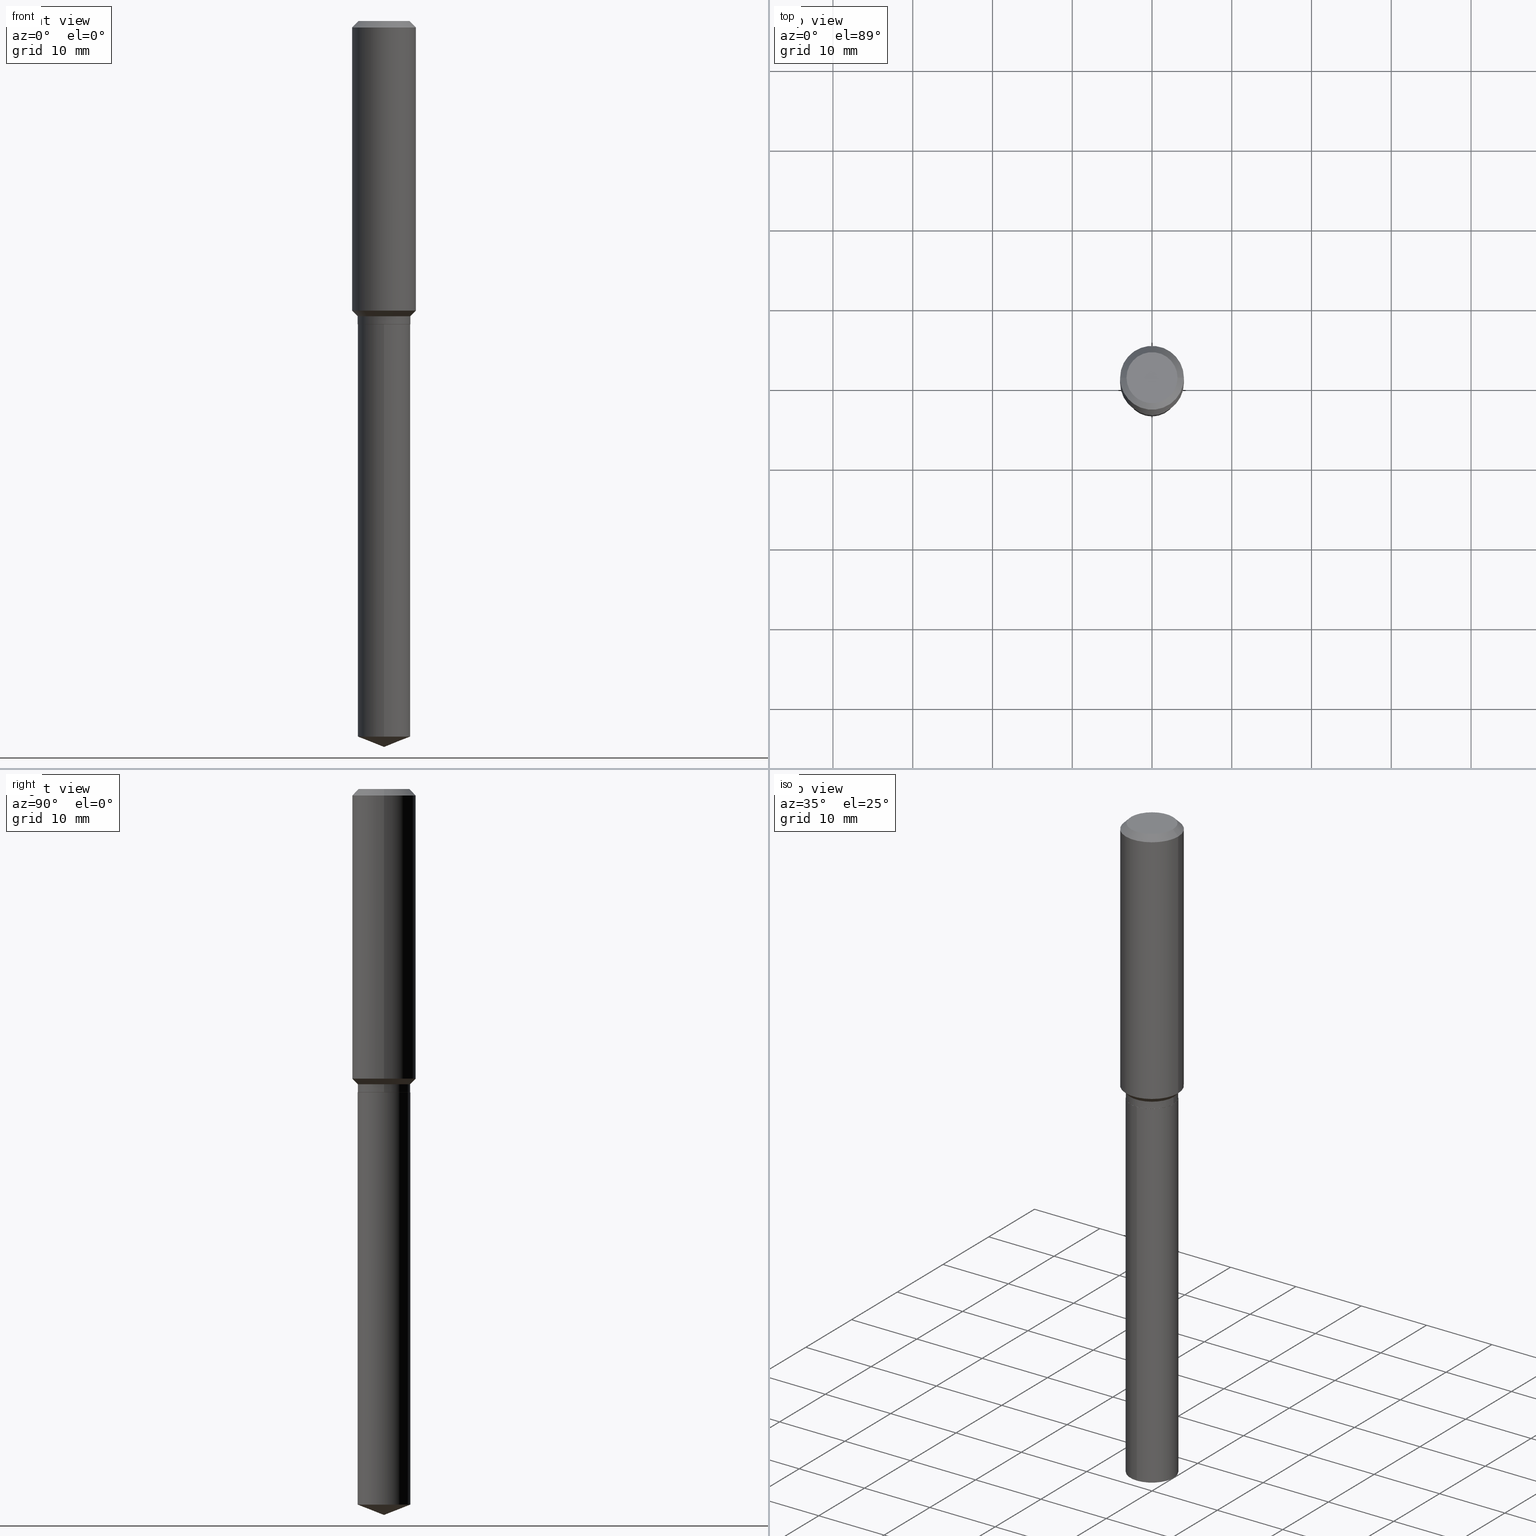
[diagram: canonical four-view strip — front | top / right | iso, engineering-drawing reading convention]
A machine part, canonical four-view strip (front | top / right | iso — engineering-drawing reading convention). The complete STEP part file that produces these views, byte-faithful:
ISO-10303-21;
HEADER;
FILE_DESCRIPTION (( 'STEP AP203' ),
    '1' );
FILE_NAME ('66539.STEP',
    '2024-04-25T00:32:52',
    ( '' ),
    ( '' ),
    'SwSTEP 2.0',
    'SolidWorks 2023',
    '' );
FILE_SCHEMA (( 'CONFIG_CONTROL_DESIGN' ));
ENDSEC;

DATA;
#1 = PERSON_AND_ORGANIZATION_ROLE ( 'creator' ) ;
#2 = CARTESIAN_POINT ( 'NONE',  ( 8.636895204888756540E-29, -1.233144730051183123E-14, -3.531831029217620266 ) ) ;
#3 = EDGE_LOOP ( 'NONE', ( #119, #77 ) ) ;
#4 = DIRECTION ( 'NONE',  ( -2.445468806185136597E-29, 3.491481338843145583E-15, 1.000000000000000000 ) ) ;
#5 = ORIENTED_EDGE ( 'NONE', *, *, #387, .F. ) ;
#6 = ADVANCED_FACE ( 'NONE', ( #322 ), #208, .T. ) ;
#7 = DIRECTION ( 'NONE',  ( -6.982962677686266711E-15, -1.000000000000000000, 4.206078512185163024E-15 ) ) ;
#8 = VERTEX_POINT ( 'NONE', #132 ) ;
#9 = VECTOR ( 'NONE', #255, 39.37007874015748143 ) ;
#10 = CARTESIAN_POINT ( 'NONE',  ( 8.636895204888756540E-29, -1.233144730051183123E-14, -3.531831029217620266 ) ) ;
#11 = DIRECTION ( 'NONE',  ( 1.000000000000000000, -6.982962677686268288E-15, 0.000000000000000000 ) ) ;
#12 = FACE_OUTER_BOUND ( 'NONE', #87, .T. ) ;
#13 = PRODUCT ( '66539', '66539', '', ( #16 ) ) ;
#14 = DIRECTION ( 'NONE',  ( -2.445468806185136597E-29, 3.491481338843145583E-15, 1.000000000000000000 ) ) ;
#15 = ADVANCED_FACE ( 'NONE', ( #438 ), #50, .T. ) ;
#16 = MECHANICAL_CONTEXT ( 'NONE', #233, 'mechanical' ) ;
#17 = LINE ( 'NONE', #55, #9 ) ;
#18 = DIRECTION ( 'NONE',  ( -1.000000000000000000, 6.982962677686265922E-15, -4.876176775795935793E-29 ) ) ;
#19 = DIMENSIONAL_EXPONENTS ( 1.000000000000000000, 0.000000000000000000, 0.000000000000000000, 0.000000000000000000, 0.000000000000000000, 0.000000000000000000, 0.000000000000000000 ) ;
#20 = ORIENTED_EDGE ( 'NONE', *, *, #125, .T. ) ;
#21 = PLANE ( 'NONE',  #45 ) ;
#22 = CARTESIAN_POINT ( 'NONE',  ( 0.000000000000000000, 0.000000000000000000, 0.000000000000000000 ) ) ;
#23 = AXIS2_PLACEMENT_3D ( 'NONE', #479, #193, #295 ) ;
#24 = ORIENTED_EDGE ( 'NONE', *, *, #299, .F. ) ;
#25 = DIRECTION ( 'NONE',  ( -2.445468806185136597E-29, 3.491481338843145583E-15, 1.000000000000000000 ) ) ;
#26 = APPROVAL_ROLE ( '' ) ;
#27 = COORDINATED_UNIVERSAL_TIME_OFFSET ( 5, 0, .BEHIND. ) ;
#28 = DIRECTION ( 'NONE',  ( -2.445468806185136597E-29, 3.491481338843145583E-15, 1.000000000000000000 ) ) ;
#29 = ORIENTED_EDGE ( 'NONE', *, *, #210, .T. ) ;
#30 = FACE_OUTER_BOUND ( 'NONE', #3, .T. ) ;
#31 = ORIENTED_EDGE ( 'NONE', *, *, #198, .T. ) ;
#32 = EDGE_CURVE ( 'NONE', #154, #94, #17, .T. ) ;
#33 = APPROVAL_DATE_TIME ( #186, #285 ) ;
#34 = VECTOR ( 'NONE', #280, 39.37007874015748143 ) ;
#35 = DIRECTION ( 'NONE',  ( 2.445468806185136597E-29, -3.491481338843145583E-15, -1.000000000000000000 ) ) ;
#36 = ORIENTED_EDGE ( 'NONE', *, *, #358, .F. ) ;
#37 = AXIS2_PLACEMENT_3D ( 'NONE', #432, #459, #166 ) ;
#38 = DIRECTION ( 'NONE',  ( -2.445425864037539356E-29, 3.491542834442619101E-15, 1.000000000000000000 ) ) ;
#39 = ORIENTED_EDGE ( 'NONE', *, *, #141, .T. ) ;
#40 = DIRECTION ( 'NONE',  ( -2.445425864037539637E-29, 3.491542834442619495E-15, 1.000000000000000000 ) ) ;
#41 = ORIENTED_EDGE ( 'NONE', *, *, #198, .F. ) ;
#42 = FACE_OUTER_BOUND ( 'NONE', #66, .T. ) ;
#43 = DIRECTION ( 'NONE',  ( -6.982962677686266711E-15, -1.000000000000000000, 4.206078512185163024E-15 ) ) ;
#44 = AXIS2_PLACEMENT_3D ( 'NONE', #332, #248, #43 ) ;
#45 = AXIS2_PLACEMENT_3D ( 'NONE', #437, #174, #338 ) ;
#46 = LOCAL_TIME ( 20, 32, 52.00000000000000000, #65 ) ;
#47 = DIRECTION ( 'NONE',  ( 1.000000000000000000, -6.982962677686265922E-15, 4.876281427513067258E-29 ) ) ;
#48 = ADVANCED_FACE ( 'NONE', ( #53 ), #173, .T. ) ;
#49 = DIRECTION ( 'NONE',  ( -2.445425864037539637E-29, 3.491542834442619495E-15, 1.000000000000000000 ) ) ;
#50 = CONICAL_SURFACE ( 'NONE', #422, 0.1293999999999999873, 0.7853981633972775267 ) ;
#51 = VECTOR ( 'NONE', #439, 39.37007874015748143 ) ;
#52 = AXIS2_PLACEMENT_3D ( 'NONE', #443, #294, #58 ) ;
#53 = FACE_OUTER_BOUND ( 'NONE', #486, .T. ) ;
#54 = APPLICATION_PROTOCOL_DEFINITION ( 'international standard', 'config_control_design', 1994, #233 ) ;
#55 = CARTESIAN_POINT ( 'NONE',  ( 0.1575000000000000011, -1.190510096822576026E-15, -0.03150000000000019451 ) ) ;
#56 = APPROVAL_DATE_TIME ( #290, #377 ) ;
#57 = CARTESIAN_POINT ( 'NONE',  ( -8.751458369089940116E-28, 1.249522103628457051E-13, 35.78707874015748303 ) ) ;
#58 = DIRECTION ( 'NONE',  ( 1.000000000000000000, -6.982962677686268288E-15, 0.000000000000000000 ) ) ;
#59 = CYLINDRICAL_SURFACE ( 'NONE', #60, 0.1575000000000000844 ) ;
#60 = AXIS2_PLACEMENT_3D ( 'NONE', #22, #175, #217 ) ;
#61 = VECTOR ( 'NONE', #130, 39.37007874015748143 ) ;
#62 = DIRECTION ( 'NONE',  ( -6.982962677686266711E-15, -1.000000000000000000, 4.206078512185163024E-15 ) ) ;
#63 = ORIENTED_EDGE ( 'NONE', *, *, #344, .F. ) ;
#64 = ADVANCED_FACE ( 'NONE', ( #435 ), #471, .T. ) ;
#65 = COORDINATED_UNIVERSAL_TIME_OFFSET ( 5, 0, .BEHIND. ) ;
#66 = EDGE_LOOP ( 'NONE', ( #311, #216, #41, #112 ) ) ;
#67 = ADVANCED_FACE ( 'NONE', ( #138 ), #143, .T. ) ;
#68 = AXIS2_PLACEMENT_3D ( 'NONE', #57, #404, #391 ) ;
#69 = CONICAL_SURFACE ( 'NONE', #375, 0.1575000000000000011, 0.7853981633974449483 ) ;
#70 = DIRECTION ( 'NONE',  ( 1.000000000000000000, -6.982962677686265922E-15, 4.876176775795935793E-29 ) ) ;
#71 = APPROVAL_ROLE ( '' ) ;
#72 = EDGE_CURVE ( 'NONE', #269, #236, #465, .T. ) ;
#73 = CARTESIAN_POINT ( 'NONE',  ( 8.762090515050494278E-29, -1.251001393177779982E-14, -3.583000000000000185 ) ) ;
#74 = EDGE_LOOP ( 'NONE', ( #306, #20, #36, #99 ) ) ;
#75 = SECURITY_CLASSIFICATION_LEVEL ( 'unclassified' ) ;
#76 = CARTESIAN_POINT ( 'NONE',  ( 3.495553111561034173E-29, -4.990723425742393195E-15, -1.429400000000000004 ) ) ;
#77 = ORIENTED_EDGE ( 'NONE', *, *, #416, .F. ) ;
#78 = DIRECTION ( 'NONE',  ( -2.445425864037539637E-29, 3.491542834442619495E-15, 1.000000000000000000 ) ) ;
#79 = ORIENTED_EDGE ( 'NONE', *, *, #253, .T. ) ;
#80 = AXIS2_PLACEMENT_3D ( 'NONE', #179, #28, #485 ) ;
#81 = CARTESIAN_POINT ( 'NONE',  ( 0.1293999999999999873, -6.128248045937486730E-15, -1.496400000000000396 ) ) ;
#82 = ORIENTED_EDGE ( 'NONE', *, *, #125, .F. ) ;
#83 = ADVANCED_FACE ( 'NONE', ( #211 ), #282, .T. ) ;
#84 = CARTESIAN_POINT ( 'NONE',  ( 3.659399521575439863E-29, -5.224652675444884140E-15, -1.496400000000000396 ) ) ;
#85 = ORIENTED_EDGE ( 'NONE', *, *, #172, .F. ) ;
#86 = DIRECTION ( 'NONE',  ( -6.982962677686266711E-15, -1.000000000000000000, 4.206078512185163024E-15 ) ) ;
#87 = EDGE_LOOP ( 'NONE', ( #178, #39, #360, #63 ) ) ;
#88 = CARTESIAN_POINT ( 'NONE',  ( -0.1298999999999999877, -4.232002608982592346E-15, -1.457000000000000073 ) ) ;
#89 = DIRECTION ( 'NONE',  ( -2.445425864037539637E-29, 3.491542834442619495E-15, 1.000000000000000000 ) ) ;
#90 = COORDINATED_UNIVERSAL_TIME_OFFSET ( 5, 0, .BEHIND. ) ;
#91 = EDGE_CURVE ( 'NONE', #158, #200, #228, .T. ) ;
#92 = AXIS2_PLACEMENT_3D ( 'NONE', #10, #207, #7 ) ;
#93 = CARTESIAN_POINT ( 'NONE',  ( 3.563048050611744147E-29, -5.087088310694462559E-15, -1.457000000000000073 ) ) ;
#94 = VERTEX_POINT ( 'NONE', #297 ) ;
#95 =( NAMED_UNIT ( * ) SI_UNIT ( $, .STERADIAN. ) SOLID_ANGLE_UNIT ( ) );
#96 = VERTEX_POINT ( 'NONE', #450 ) ;
#97 = CARTESIAN_POINT ( 'NONE',  ( 0.1260000000000000009, -1.027466422270894443E-15, 3.860086710919128072E-18 ) ) ;
#98 = LINE ( 'NONE', #328, #272 ) ;
#99 = ORIENTED_EDGE ( 'NONE', *, *, #340, .F. ) ;
#100 = CIRCLE ( 'NONE', #397, 0.1298999999999999877 ) ;
#101 = PERSON_AND_ORGANIZATION_ROLE ( 'classification_officer' ) ;
#102 = PERSON_AND_ORGANIZATION ( #314, #412 ) ;
#103 = PLANE ( 'NONE',  #201 ) ;
#104 = EDGE_LOOP ( 'NONE', ( #425, #257 ) ) ;
#105 = EDGE_CURVE ( 'NONE', #158, #114, #113, .T. ) ;
#106 = AXIS2_PLACEMENT_3D ( 'NONE', #289, #398, #205 ) ;
#107 = DATE_AND_TIME ( #445, #46 ) ;
#108 = CIRCLE ( 'NONE', #251, 0.1293999999999999873 ) ;
#109 = DIRECTION ( 'NONE',  ( -6.982962677686266711E-15, -1.000000000000000000, 4.206078512185163024E-15 ) ) ;
#110 = ORIENTED_EDGE ( 'NONE', *, *, #227, .F. ) ;
#111 = CARTESIAN_POINT ( 'NONE',  ( 8.761960870846503037E-29, -1.251019797580790401E-14, -3.583000000000000185 ) ) ;
#112 = ORIENTED_EDGE ( 'NONE', *, *, #292, .F. ) ;
#113 = LINE ( 'NONE', #73, #242 ) ;
#114 = VERTEX_POINT ( 'NONE', #270 ) ;
#115 = ADVANCED_BREP_SHAPE_REPRESENTATION ( '66539', ( #363, #370, #291 ), #223 ) ;
#116 = VECTOR ( 'NONE', #379, 39.37007874015748143 ) ;
#117 = VECTOR ( 'NONE', #235, 39.37007874015748143 ) ;
#118 = CARTESIAN_POINT ( 'NONE',  ( 0.000000000000000000, 0.000000000000000000, 0.000000000000000000 ) ) ;
#119 = ORIENTED_EDGE ( 'NONE', *, *, #331, .F. ) ;
#120 = EDGE_CURVE ( 'NONE', #200, #114, #136, .T. ) ;
#121 = DIRECTION ( 'NONE',  ( -2.445468806185136597E-29, 3.491481338843145583E-15, 1.000000000000000000 ) ) ;
#122 = VERTEX_POINT ( 'NONE', #405 ) ;
#123 = CARTESIAN_POINT ( 'NONE',  ( -9.439721640706201686E-47, 1.347742071746726764E-32, 3.860086710912459732E-18 ) ) ;
#124 = CARTESIAN_POINT ( 'NONE',  ( -0.1298999999999999877, -4.164093296942092308E-15, -1.457000000000000073 ) ) ;
#125 = EDGE_CURVE ( 'NONE', #114, #382, #258, .T. ) ;
#126 = DIRECTION ( 'NONE',  ( 1.000000000000000000, -6.982962677686265133E-15, 0.000000000000000000 ) ) ;
#127 = CIRCLE ( 'NONE', #260, 0.1575000000000000011 ) ;
#128 = AXIS2_PLACEMENT_3D ( 'NONE', #157, #315, #206 ) ;
#129 = CC_DESIGN_APPROVAL ( #285, ( #273 ) ) ;
#130 = DIRECTION ( 'NONE',  ( 0.7071067811864267805, -2.468850131080992517E-15, 0.7071067811866682540 ) ) ;
#131 = CARTESIAN_POINT ( 'NONE',  ( -0.1298999999999999877, 9.229950137523700540E-16, -6.389696682241121810E-30 ) ) ;
#132 = CARTESIAN_POINT ( 'NONE',  ( 0.1298999999999999877, -6.129993786606908234E-15, -1.495900000000000230 ) ) ;
#133 = APPLICATION_CONTEXT ( 'configuration controlled 3d designs of mechanical parts and assemblies' ) ;
#134 = CALENDAR_DATE ( 2024, 24, 4 ) ;
#135 = CC_DESIGN_DATE_AND_TIME_ASSIGNMENT ( #146, #453, ( #273 ) ) ;
#136 = CIRCLE ( 'NONE', #342, 0.1298999999999999877 ) ;
#137 = AXIS2_PLACEMENT_3D ( 'NONE', #215, #89, #62 ) ;
#138 = FACE_OUTER_BOUND ( 'NONE', #460, .T. ) ;
#139 = ORIENTED_EDGE ( 'NONE', *, *, #141, .F. ) ;
#140 = CARTESIAN_POINT ( 'NONE',  ( 7.703226739483228723E-31, -1.099816621735597661E-16, -0.03150000000000019451 ) ) ;
#141 = EDGE_CURVE ( 'NONE', #269, #313, #100, .T. ) ;
#142 = DIRECTION ( 'NONE',  ( -1.000000000000000000, 6.982962677686265922E-15, 0.000000000000000000 ) ) ;
#143 = CONICAL_SURFACE ( 'NONE', #449, 0.1298999999999999877, 0.7853981633974513876 ) ;
#144 = AXIS2_PLACEMENT_3D ( 'NONE', #76, #378, #231 ) ;
#145 = LOCAL_TIME ( 20, 32, 52.00000000000000000, #90 ) ;
#146 = DATE_AND_TIME ( #413, #183 ) ;
#147 = DATE_TIME_ROLE ( 'creation_date' ) ;
#148 = CC_DESIGN_PERSON_AND_ORGANIZATION_ASSIGNMENT ( #408, #101, ( #273 ) ) ;
#149 = LINE ( 'NONE', #277, #117 ) ;
#150 = ORIENTED_EDGE ( 'NONE', *, *, #387, .T. ) ;
#151 = PERSON_AND_ORGANIZATION_ROLE ( 'creator' ) ;
#152 = VECTOR ( 'NONE', #237, 39.37007874015748143 ) ;
#153 = FACE_OUTER_BOUND ( 'NONE', #428, .T. ) ;
#154 = VERTEX_POINT ( 'NONE', #97 ) ;
#155 = DIRECTION ( 'NONE',  ( 1.000000000000000000, -6.982962677686268288E-15, 0.000000000000000000 ) ) ;
#156 = EDGE_LOOP ( 'NONE', ( #238, #386, #455, #402 ) ) ;
#157 = CARTESIAN_POINT ( 'NONE',  ( 3.659399521575439863E-29, -5.224652675444884140E-15, -1.496400000000000396 ) ) ;
#158 = VERTEX_POINT ( 'NONE', #454 ) ;
#159 = CLOSED_SHELL ( 'NONE', ( #288, #6, #302, #48, #456 ) ) ;
#160 = AXIS2_PLACEMENT_3D ( 'NONE', #468, #49, #243 ) ;
#161 = CARTESIAN_POINT ( 'NONE',  ( 0.1575000000000001676, -6.090540047477979887E-15, -1.429400000000000004 ) ) ;
#162 = VERTEX_POINT ( 'NONE', #444 ) ;
#163 = ADVANCED_FACE ( 'NONE', ( #30 ), #103, .F. ) ;
#164 = DIRECTION ( 'NONE',  ( -2.445468806185136597E-29, 3.491481338843145583E-15, 1.000000000000000000 ) ) ;
#165 = ORIENTED_EDGE ( 'NONE', *, *, #91, .F. ) ;
#166 = DIRECTION ( 'NONE',  ( 1.000000000000000000, -6.982962677686265922E-15, 4.876281427513067258E-29 ) ) ;
#167 = CARTESIAN_POINT ( 'NONE',  ( 3.659399521575438742E-29, -5.224652675444883351E-15, -1.496400000000000174 ) ) ;
#168 = CIRCLE ( 'NONE', #265, 0.1298999999999999877 ) ;
#169 = LOCAL_TIME ( 20, 32, 52.00000000000000000, #27 ) ;
#170 = LENGTH_MEASURE_WITH_UNIT ( LENGTH_MEASURE( 0.02539999999999999897 ), #434 );
#171 = ORIENTED_EDGE ( 'NONE', *, *, #263, .T. ) ;
#172 = EDGE_CURVE ( 'NONE', #236, #420, #264, .T. ) ;
#173 = CYLINDRICAL_SURFACE ( 'NONE', #44, 0.1298999999999999877 ) ;
#174 = DIRECTION ( 'NONE',  ( 2.445425864037539637E-29, -3.491542834442619101E-15, -1.000000000000000000 ) ) ;
#175 = DIRECTION ( 'NONE',  ( -2.445468806185136597E-29, 3.491481338843145583E-15, 1.000000000000000000 ) ) ;
#176 = CIRCLE ( 'NONE', #218, 0.1575000000000001676 ) ;
#177 = PERSON_AND_ORGANIZATION ( #314, #412 ) ;
#178 = ORIENTED_EDGE ( 'NONE', *, *, #72, .F. ) ;
#179 = CARTESIAN_POINT ( 'NONE',  ( 3.563048050611744147E-29, -5.087088310694462559E-15, -1.457000000000000073 ) ) ;
#180 = APPROVAL_DATE_TIME ( #107, #347 ) ;
#181 = VECTOR ( 'NONE', #381, 39.37007874015748854 ) ;
#182 = VECTOR ( 'NONE', #38, 39.37007874015748143 ) ;
#183 = LOCAL_TIME ( 20, 32, 52.00000000000000000, #221 ) ;
#184 = CALENDAR_DATE ( 2024, 24, 4 ) ;
#185 = EDGE_CURVE ( 'NONE', #430, #420, #373, .T. ) ;
#186 = DATE_AND_TIME ( #184, #169 ) ;
#187 = CARTESIAN_POINT ( 'NONE',  ( 7.703226739483228723E-31, -1.099816621735597661E-16, -0.03150000000000019451 ) ) ;
#188 = ORIENTED_EDGE ( 'NONE', *, *, #247, .F. ) ;
#189 = APPROVAL_STATUS ( 'not_yet_approved' ) ;
#190 = CARTESIAN_POINT ( 'NONE',  ( -0.1575000000000000844, 1.119104808822158392E-15, -7.747322767151481189E-30 ) ) ;
#191 = ORIENTED_EDGE ( 'NONE', *, *, #32, .T. ) ;
#192 = ADVANCED_FACE ( 'NONE', ( #153 ), #59, .T. ) ;
#193 = DIRECTION ( 'NONE',  ( -2.445468806185136597E-29, 3.491481338843145583E-15, 1.000000000000000000 ) ) ;
#194 = EDGE_LOOP ( 'NONE', ( #85, #241, #275, #409 ) ) ;
#195 = CC_DESIGN_DATE_AND_TIME_ASSIGNMENT ( #353, #147, ( #320 ) ) ;
#196 = DIRECTION ( 'NONE',  ( 1.000000000000000000, -6.982962677686268288E-15, 0.000000000000000000 ) ) ;
#197 = ORIENTED_EDGE ( 'NONE', *, *, #210, .F. ) ;
#198 = EDGE_CURVE ( 'NONE', #8, #162, #473, .T. ) ;
#199 = FACE_OUTER_BOUND ( 'NONE', #300, .T. ) ;
#200 = VERTEX_POINT ( 'NONE', #337 ) ;
#201 = AXIS2_PLACEMENT_3D ( 'NONE', #312, #266, #70 ) ;
#202 = EDGE_CURVE ( 'NONE', #420, #94, #127, .T. ) ;
#203 = AXIS2_PLACEMENT_3D ( 'NONE', #84, #164, #126 ) ;
#204 = LINE ( 'NONE', #427, #182 ) ;
#205 = DIRECTION ( 'NONE',  ( 1.000000000000000000, -6.982962677686266711E-15, 4.876176775795935232E-29 ) ) ;
#206 = DIRECTION ( 'NONE',  ( 1.000000000000000000, -6.982962677686265133E-15, 0.000000000000000000 ) ) ;
#207 = DIRECTION ( 'NONE',  ( -2.445425864037539637E-29, 3.491542834442619495E-15, 1.000000000000000000 ) ) ;
#208 = CONICAL_SURFACE ( 'NONE', #68, 99.94676754584133960, 1.195550537616124176 ) ;
#209 = CONICAL_SURFACE ( 'NONE', #52, 0.1298999999999999877, 0.7853981633974513876 ) ;
#210 = EDGE_CURVE ( 'NONE', #94, #420, #325, .T. ) ;
#211 = FACE_OUTER_BOUND ( 'NONE', #415, .T. ) ;
#212 = DIRECTION ( 'NONE',  ( -2.445468806185136877E-29, 3.491481338843145188E-15, 1.000000000000000000 ) ) ;
#213 = VERTEX_POINT ( 'NONE', #224 ) ;
#214 = PERSON_AND_ORGANIZATION ( #314, #412 ) ;
#215 = CARTESIAN_POINT ( 'NONE',  ( 3.659399521575438742E-29, -5.224652675444883351E-15, -1.496400000000000174 ) ) ;
#216 = ORIENTED_EDGE ( 'NONE', *, *, #483, .T. ) ;
#217 = DIRECTION ( 'NONE',  ( 1.000000000000000000, -6.982962677686267499E-15, 4.876176775795936353E-29 ) ) ;
#218 = AXIS2_PLACEMENT_3D ( 'NONE', #365, #14, #240 ) ;
#219 = APPROVAL_PERSON_ORGANIZATION ( #330, #377, #472 ) ;
#220 = CARTESIAN_POINT ( 'NONE',  ( -0.1260000000000000009, 9.348441284752484904E-16, 3.860086710906114178E-18 ) ) ;
#221 = COORDINATED_UNIVERSAL_TIME_OFFSET ( 5, 0, .BEHIND. ) ;
#222 = ORIENTED_EDGE ( 'NONE', *, *, #253, .F. ) ;
#223 =( GEOMETRIC_REPRESENTATION_CONTEXT ( 3 ) GLOBAL_UNCERTAINTY_ASSIGNED_CONTEXT ( ( #367 ) ) GLOBAL_UNIT_ASSIGNED_CONTEXT ( ( #374, #296, #95 ) ) REPRESENTATION_CONTEXT ( 'NONE', 'WORKASPACE' ) );
#224 = CARTESIAN_POINT ( 'NONE',  ( -9.070868518314093100E-16, -0.1299000000000052057, -1.496399999999999730 ) ) ;
#225 = ORIENTED_EDGE ( 'NONE', *, *, #185, .F. ) ;
#226 = DESIGN_CONTEXT ( 'detailed design', #133, 'design' ) ;
#227 = EDGE_CURVE ( 'NONE', #278, #236, #446, .T. ) ;
#228 = LINE ( 'NONE', #111, #181 ) ;
#229 = ORIENTED_EDGE ( 'NONE', *, *, #483, .F. ) ;
#230 = APPROVAL_STATUS ( 'not_yet_approved' ) ;
#231 = DIRECTION ( 'NONE',  ( 1.000000000000000000, -6.982962677686267499E-15, 0.000000000000000000 ) ) ;
#232 = EDGE_LOOP ( 'NONE', ( #165, #303, #350 ) ) ;
#233 = APPLICATION_CONTEXT ( 'configuration controlled 3d designs of mechanical parts and assemblies' ) ;
#234 = AXIS2_PLACEMENT_3D ( 'NONE', #118, #324, #429 ) ;
#235 = DIRECTION ( 'NONE',  ( -2.445468806185136877E-29, 3.491481338843145188E-15, 1.000000000000000000 ) ) ;
#236 = VERTEX_POINT ( 'NONE', #376 ) ;
#237 = DIRECTION ( 'NONE',  ( -2.445468806185136877E-29, 3.491481338843145188E-15, 1.000000000000000000 ) ) ;
#238 = ORIENTED_EDGE ( 'NONE', *, *, #32, .F. ) ;
#239 = CC_DESIGN_PERSON_AND_ORGANIZATION_ASSIGNMENT ( #348, #482, ( #393 ) ) ;
#240 = DIRECTION ( 'NONE',  ( 1.000000000000000000, -6.982962677686267499E-15, 0.000000000000000000 ) ) ;
#241 = ORIENTED_EDGE ( 'NONE', *, *, #344, .T. ) ;
#242 = VECTOR ( 'NONE', #305, 39.37007874015748143 ) ;
#243 = DIRECTION ( 'NONE',  ( -6.982962677686266711E-15, -1.000000000000000000, 4.206078512185163024E-15 ) ) ;
#244 = CYLINDRICAL_SURFACE ( 'NONE', #234, 0.1298999999999999877 ) ;
#245 = ADVANCED_FACE ( 'NONE', ( #441 ), #69, .T. ) ;
#246 = FACE_OUTER_BOUND ( 'NONE', #104, .T. ) ;
#247 = EDGE_CURVE ( 'NONE', #313, #269, #261, .T. ) ;
#248 = DIRECTION ( 'NONE',  ( -2.445425864037539637E-29, 3.491542834442619495E-15, 1.000000000000000000 ) ) ;
#249 = LINE ( 'NONE', #131, #452 ) ;
#250 = VECTOR ( 'NONE', #268, 39.37007874015748143 ) ;
#251 = AXIS2_PLACEMENT_3D ( 'NONE', #321, #284, #286 ) ;
#252 = LOCAL_TIME ( 20, 32, 52.00000000000000000, #301 ) ;
#253 = EDGE_CURVE ( 'NONE', #8, #313, #149, .T. ) ;
#254 = DIRECTION ( 'NONE',  ( 1.000000000000000000, -6.982962677686265133E-15, 0.000000000000000000 ) ) ;
#255 = DIRECTION ( 'NONE',  ( 0.7071067811865451302, -7.319954787623248157E-15, -0.7071067811865499042 ) ) ;
#256 = CARTESIAN_POINT ( 'NONE',  ( -4.719860820353100843E-47, 6.738710358733633822E-33, 1.930043355456229866E-18 ) ) ;
#257 = ORIENTED_EDGE ( 'NONE', *, *, #426, .T. ) ;
#258 = LINE ( 'NONE', #354, #116 ) ;
#259 = DIRECTION ( 'NONE',  ( 2.438088387897960049E-29, -3.491481338843145188E-15, -1.000000000000000000 ) ) ;
#260 = AXIS2_PLACEMENT_3D ( 'NONE', #187, #310, #477 ) ;
#261 = CIRCLE ( 'NONE', #80, 0.1298999999999999877 ) ;
#262 = ORIENTED_EDGE ( 'NONE', *, *, #426, .F. ) ;
#263 = EDGE_CURVE ( 'NONE', #430, #154, #392, .T. ) ;
#264 = LINE ( 'NONE', #190, #487 ) ;
#265 = AXIS2_PLACEMENT_3D ( 'NONE', #464, #121, #196 ) ;
#266 = DIRECTION ( 'NONE',  ( -2.438088387897960049E-29, 3.491481338843145188E-15, 1.000000000000000000 ) ) ;
#267 = ORIENTED_EDGE ( 'NONE', *, *, #416, .T. ) ;
#268 = DIRECTION ( 'NONE',  ( -0.7071067811865451302, 2.468850131082231817E-15, -0.7071067811865499042 ) ) ;
#269 = VERTEX_POINT ( 'NONE', #88 ) ;
#270 = CARTESIAN_POINT ( 'NONE',  ( 9.229950137524560399E-16, 0.1298999999999876365, -3.531831029217620710 ) ) ;
#271 = ORIENTED_EDGE ( 'NONE', *, *, #91, .T. ) ;
#272 = VECTOR ( 'NONE', #406, 39.37007874015748143 ) ;
#273 = SECURITY_CLASSIFICATION ( '', '', #75 ) ;
#274 = FACE_OUTER_BOUND ( 'NONE', #74, .T. ) ;
#275 = ORIENTED_EDGE ( 'NONE', *, *, #299, .T. ) ;
#276 = ADVANCED_FACE ( 'NONE', ( #388 ), #395, .T. ) ;
#277 = CARTESIAN_POINT ( 'NONE',  ( 0.1298999999999999877, -9.070868518314459921E-16, 6.334153631758919429E-30 ) ) ;
#278 = VERTEX_POINT ( 'NONE', #161 ) ;
#279 = LINE ( 'NONE', #326, #152 ) ;
#280 = DIRECTION ( 'NONE',  ( -0.7071067811865496822, 7.493145998870362049E-15, 0.7071067811865453523 ) ) ;
#281 = ADVANCED_FACE ( 'NONE', ( #199 ), #244, .T. ) ;
#282 = CONICAL_SURFACE ( 'NONE', #461, 0.1575000000000000011, 0.7853981633974449483 ) ;
#283 = AXIS2_PLACEMENT_3D ( 'NONE', #356, #40, #359 ) ;
#284 = DIRECTION ( 'NONE',  ( -2.445468806185136597E-29, 3.491481338843145583E-15, 1.000000000000000000 ) ) ;
#285 = APPROVAL ( #230, 'UNSPECIFIED' ) ;
#286 = DIRECTION ( 'NONE',  ( 1.000000000000000000, -6.982962677686265133E-15, 0.000000000000000000 ) ) ;
#287 = APPROVAL_STATUS ( 'not_yet_approved' ) ;
#288 = ADVANCED_FACE ( 'NONE', ( #274 ), #433, .T. ) ;
#289 = CARTESIAN_POINT ( 'NONE',  ( 0.000000000000000000, 0.000000000000000000, 0.000000000000000000 ) ) ;
#290 = DATE_AND_TIME ( #134, #145 ) ;
#291 = AXIS2_PLACEMENT_3D ( 'NONE', #403, #333, #366 ) ;
#292 = EDGE_CURVE ( 'NONE', #96, #8, #424, .T. ) ;
#293 = CARTESIAN_POINT ( 'NONE',  ( 3.659399521575439863E-29, -5.224652675444884140E-15, -1.496400000000000396 ) ) ;
#294 = DIRECTION ( 'NONE',  ( -2.445468806185136597E-29, 3.491481338843145583E-15, 1.000000000000000000 ) ) ;
#295 = DIRECTION ( 'NONE',  ( 1.000000000000000000, -6.982962677686265922E-15, 0.000000000000000000 ) ) ;
#296 =( NAMED_UNIT ( * ) PLANE_ANGLE_UNIT ( ) SI_UNIT ( $, .RADIAN. ) );
#297 = CARTESIAN_POINT ( 'NONE',  ( 0.1575000000000000011, -1.209798283909146741E-15, -0.03150000000000019451 ) ) ;
#298 = PERSON_AND_ORGANIZATION_ROLE ( 'design_owner' ) ;
#299 = EDGE_CURVE ( 'NONE', #278, #94, #279, .T. ) ;
#300 = EDGE_LOOP ( 'NONE', ( #31, #451, #188, #222 ) ) ;
#301 = COORDINATED_UNIVERSAL_TIME_OFFSET ( 5, 0, .BEHIND. ) ;
#302 = ADVANCED_FACE ( 'NONE', ( #361 ), #383, .T. ) ;
#303 = ORIENTED_EDGE ( 'NONE', *, *, #105, .T. ) ;
#304 = PERSON_AND_ORGANIZATION ( #314, #412 ) ;
#305 = DIRECTION ( 'NONE',  ( 6.611014441532080000E-15, 0.9304175679820287925, 0.3665012267242861999 ) ) ;
#306 = ORIENTED_EDGE ( 'NONE', *, *, #120, .T. ) ;
#307 = CC_DESIGN_PERSON_AND_ORGANIZATION_ASSIGNMENT ( #177, #298, ( #13 ) ) ;
#308 = CIRCLE ( 'NONE', #137, 0.1298999999999999877 ) ;
#309 = PERSON_AND_ORGANIZATION ( #314, #412 ) ;
#310 = DIRECTION ( 'NONE',  ( -2.445468806185136597E-29, 3.491481338843145583E-15, 1.000000000000000000 ) ) ;
#311 = ORIENTED_EDGE ( 'NONE', *, *, #331, .T. ) ;
#312 = CARTESIAN_POINT ( 'NONE',  ( 1.453378357895890987E-29, -8.383800540761116841E-15, -1.496400000000000396 ) ) ;
#313 = VERTEX_POINT ( 'NONE', #466 ) ;
#314 = PERSON ( 'UNSPECIFIED', 'UNSPECIFIED', 'UNSPECIFIED', ('UNSPECIFIED'), ('UNSPECIFIED'), ('UNSPECIFIED') ) ;
#315 = DIRECTION ( 'NONE',  ( -2.445468806185136597E-29, 3.491481338843145583E-15, 1.000000000000000000 ) ) ;
#316 = EDGE_LOOP ( 'NONE', ( #171, #346 ) ) ;
#317 = CC_DESIGN_SECURITY_CLASSIFICATION ( #273, ( #393 ) ) ;
#318 = DIRECTION ( 'NONE',  ( -2.445425864037539637E-29, 3.491542834442619495E-15, 1.000000000000000000 ) ) ;
#319 = ORIENTED_EDGE ( 'NONE', *, *, #227, .T. ) ;
#320 = PRODUCT_DEFINITION ( 'UNKNOWN', '', #393, #226 ) ;
#321 = CARTESIAN_POINT ( 'NONE',  ( 3.659399521575439863E-29, -5.224652675444884140E-15, -1.496400000000000396 ) ) ;
#322 = FACE_OUTER_BOUND ( 'NONE', #232, .T. ) ;
#323 = ADVANCED_FACE ( 'NONE', ( #42 ), #431, .T. ) ;
#324 = DIRECTION ( 'NONE',  ( -2.445468806185136597E-29, 3.491481338843145583E-15, 1.000000000000000000 ) ) ;
#325 = CIRCLE ( 'NONE', #23, 0.1575000000000000011 ) ;
#326 = CARTESIAN_POINT ( 'NONE',  ( 0.1575000000000000844, -1.099816621735587677E-15, 7.679978421878603638E-30 ) ) ;
#327 = PRODUCT_DEFINITION_SHAPE ( 'NONE', 'NONE',  #320 ) ;
#328 = CARTESIAN_POINT ( 'NONE',  ( 0.1298999999999999877, -5.994175162525908945E-15, -1.457000000000000073 ) ) ;
#329 = ORIENTED_EDGE ( 'NONE', *, *, #247, .T. ) ;
#330 = PERSON_AND_ORGANIZATION ( #314, #412 ) ;
#331 = EDGE_CURVE ( 'NONE', #96, #122, #108, .T. ) ;
#332 = CARTESIAN_POINT ( 'NONE',  ( 3.659399521575438742E-29, -5.224652675444883351E-15, -1.496400000000000174 ) ) ;
#333 = DIRECTION ( 'NONE',  ( 0.000000000000000000, 0.000000000000000000, 1.000000000000000000 ) ) ;
#334 = CIRCLE ( 'NONE', #352, 0.1260000000000000009 ) ;
#335 = ORIENTED_EDGE ( 'NONE', *, *, #340, .T. ) ;
#336 = APPROVAL_PERSON_ORGANIZATION ( #309, #285, #71 ) ;
#337 = CARTESIAN_POINT ( 'NONE',  ( -9.070868518313592174E-16, -0.1299000000000122557, -3.531831029217619822 ) ) ;
#338 = DIRECTION ( 'NONE',  ( 6.982962677686265922E-15, 1.000000000000000000, -3.491542834442619101E-15 ) ) ;
#339 = CARTESIAN_POINT ( 'NONE',  ( -0.1575000000000000011, 9.898349595620272334E-16, -0.03150000000000019451 ) ) ;
#340 = EDGE_CURVE ( 'NONE', #200, #213, #204, .T. ) ;
#341 = EDGE_CURVE ( 'NONE', #114, #200, #423, .T. ) ;
#342 = AXIS2_PLACEMENT_3D ( 'NONE', #2, #78, #109 ) ;
#343 = AXIS2_PLACEMENT_3D ( 'NONE', #256, #259, #18 ) ;
#344 = EDGE_CURVE ( 'NONE', #236, #278, #176, .T. ) ;
#345 = CARTESIAN_POINT ( 'NONE',  ( 7.703226739483228723E-31, -1.099816621735597661E-16, -0.03150000000000019451 ) ) ;
#346 = ORIENTED_EDGE ( 'NONE', *, *, #394, .T. ) ;
#347 = APPROVAL ( #189, 'UNSPECIFIED' ) ;
#348 = PERSON_AND_ORGANIZATION ( #314, #412 ) ;
#349 = DIRECTION ( 'NONE',  ( -2.445468806185136877E-29, 3.491481338843145188E-15, 1.000000000000000000 ) ) ;
#350 = ORIENTED_EDGE ( 'NONE', *, *, #120, .F. ) ;
#351 = AXIS2_PLACEMENT_3D ( 'NONE', #488, #411, #417 ) ;
#352 = AXIS2_PLACEMENT_3D ( 'NONE', #123, #4, #47 ) ;
#353 = DATE_AND_TIME ( #448, #252 ) ;
#354 = CARTESIAN_POINT ( 'NONE',  ( 9.229950137524065389E-16, 0.1298999999999947697, -1.496400000000000841 ) ) ;
#355 = EDGE_LOOP ( 'NONE', ( #229, #267, #371, #5 ) ) ;
#356 = CARTESIAN_POINT ( 'NONE',  ( -8.751458369089940116E-28, 1.249522103628457051E-13, 35.78707874015748303 ) ) ;
#357 = ORIENTED_EDGE ( 'NONE', *, *, #341, .F. ) ;
#358 = EDGE_CURVE ( 'NONE', #213, #382, #436, .T. ) ;
#359 = DIRECTION ( 'NONE',  ( -6.982962677686265922E-15, -1.000000000000000000, 3.498627837349956496E-15 ) ) ;
#360 = ORIENTED_EDGE ( 'NONE', *, *, #442, .T. ) ;
#361 = FACE_OUTER_BOUND ( 'NONE', #380, .T. ) ;
#362 = DIRECTION ( 'NONE',  ( -2.445468806185136597E-29, 3.491481338843145583E-15, 1.000000000000000000 ) ) ;
#363 = MANIFOLD_SOLID_BREP ( 'Body-Move/Copy2[1]', #159 ) ;
#364 = CARTESIAN_POINT ( 'NONE',  ( -0.1575000000000000011, -1.431247735135817737E-15, -0.03150000000000019451 ) ) ;
#365 = CARTESIAN_POINT ( 'NONE',  ( 3.495553111561034173E-29, -4.990723425742393195E-15, -1.429400000000000004 ) ) ;
#366 = DIRECTION ( 'NONE',  ( 1.000000000000000000, 0.000000000000000000, 0.000000000000000000 ) ) ;
#367 = UNCERTAINTY_MEASURE_WITH_UNIT (LENGTH_MEASURE( 1.000000000000000082E-05 ), #374, 'distance_accuracy_value', 'NONE');
#368 = ORIENTED_EDGE ( 'NONE', *, *, #172, .T. ) ;
#369 = CARTESIAN_POINT ( 'NONE',  ( -0.1293999999999999873, -4.305210375371314787E-15, -1.496400000000000396 ) ) ;
#370 = MANIFOLD_SOLID_BREP ( 'Body-Move/Copy2[2]', #481 ) ;
#371 = ORIENTED_EDGE ( 'NONE', *, *, #292, .T. ) ;
#372 = PLANE ( 'NONE',  #343 ) ;
#373 = LINE ( 'NONE', #339, #250 ) ;
#374 =( CONVERSION_BASED_UNIT ( 'INCH', #170 ) LENGTH_UNIT ( ) NAMED_UNIT ( #19 ) );
#375 = AXIS2_PLACEMENT_3D ( 'NONE', #345, #35, #142 ) ;
#376 = CARTESIAN_POINT ( 'NONE',  ( -0.1575000000000001676, -3.871618616920233225E-15, -1.429400000000000004 ) ) ;
#377 = APPROVAL ( #287, 'UNSPECIFIED' ) ;
#378 = DIRECTION ( 'NONE',  ( -2.445468806185136597E-29, 3.491481338843145583E-15, 1.000000000000000000 ) ) ;
#379 = DIRECTION ( 'NONE',  ( -2.445425864037539356E-29, 3.491542834442619101E-15, 1.000000000000000000 ) ) ;
#380 = EDGE_LOOP ( 'NONE', ( #440, #271, #357 ) ) ;
#381 = DIRECTION ( 'NONE',  ( -6.497071151882131669E-15, -0.9304175679820263500, 0.3665012267242927502 ) ) ;
#382 = VERTEX_POINT ( 'NONE', #462 ) ;
#383 = CONICAL_SURFACE ( 'NONE', #283, 99.94676754584133960, 1.195550537616124176 ) ;
#384 = CC_DESIGN_APPROVAL ( #377, ( #320 ) ) ;
#385 = CARTESIAN_POINT ( 'NONE',  ( 0.000000000000000000, 0.000000000000000000, 0.000000000000000000 ) ) ;
#386 = ORIENTED_EDGE ( 'NONE', *, *, #263, .F. ) ;
#387 = EDGE_CURVE ( 'NONE', #162, #8, #168, .T. ) ;
#388 = FACE_OUTER_BOUND ( 'NONE', #194, .T. ) ;
#389 = ORIENTED_EDGE ( 'NONE', *, *, #394, .F. ) ;
#390 = DIRECTION ( 'NONE',  ( 1.000000000000000000, -6.982962677686267499E-15, 4.876176775795936353E-29 ) ) ;
#391 = DIRECTION ( 'NONE',  ( -6.982962677686265922E-15, -1.000000000000000000, 3.498627837349956496E-15 ) ) ;
#392 = CIRCLE ( 'NONE', #37, 0.1260000000000000009 ) ;
#393 = PRODUCT_DEFINITION_FORMATION_WITH_SPECIFIED_SOURCE ( 'ANY', '', #13, .NOT_KNOWN. ) ;
#394 = EDGE_CURVE ( 'NONE', #154, #430, #334, .T. ) ;
#395 = CYLINDRICAL_SURFACE ( 'NONE', #399, 0.1575000000000000844 ) ;
#396 = DIRECTION ( 'NONE',  ( -2.445468806185136597E-29, 3.491481338843145583E-15, 1.000000000000000000 ) ) ;
#397 = AXIS2_PLACEMENT_3D ( 'NONE', #419, #25, #155 ) ;
#398 = DIRECTION ( 'NONE',  ( -2.445468806185136597E-29, 3.491481338843145583E-15, 1.000000000000000000 ) ) ;
#399 = AXIS2_PLACEMENT_3D ( 'NONE', #385, #396, #390 ) ;
#400 = APPROVAL_PERSON_ORGANIZATION ( #304, #347, #26 ) ;
#401 = PRODUCT_RELATED_PRODUCT_CATEGORY ( 'detail', '', ( #13 ) ) ;
#402 = ORIENTED_EDGE ( 'NONE', *, *, #202, .T. ) ;
#403 = CARTESIAN_POINT ( 'NONE',  ( 0.000000000000000000, 0.000000000000000000, 0.000000000000000000 ) ) ;
#404 = DIRECTION ( 'NONE',  ( -2.445425864037539637E-29, 3.491542834442619495E-15, 1.000000000000000000 ) ) ;
#405 = CARTESIAN_POINT ( 'NONE',  ( -0.1293999999999999873, -4.302561148197203586E-15, -1.496400000000000396 ) ) ;
#406 = DIRECTION ( 'NONE',  ( 0.7071067811865496822, -2.468850131082279149E-15, 0.7071067811865453523 ) ) ;
#407 = AXIS2_PLACEMENT_3D ( 'NONE', #167, #318, #86 ) ;
#408 = PERSON_AND_ORGANIZATION ( #314, #412 ) ;
#409 = ORIENTED_EDGE ( 'NONE', *, *, #202, .F. ) ;
#410 = CC_DESIGN_PERSON_AND_ORGANIZATION_ASSIGNMENT ( #102, #151, ( #393 ) ) ;
#411 = DIRECTION ( 'NONE',  ( -2.445468806185136597E-29, 3.491481338843145583E-15, 1.000000000000000000 ) ) ;
#412 = ORGANIZATION ( 'UNSPECIFIED', 'UNSPECIFIED', '' ) ;
#413 = CALENDAR_DATE ( 2024, 24, 4 ) ;
#414 = DIRECTION ( 'NONE',  ( 2.445468806185136597E-29, -3.491481338843145583E-15, -1.000000000000000000 ) ) ;
#415 = EDGE_LOOP ( 'NONE', ( #389, #191, #29, #225 ) ) ;
#416 = EDGE_CURVE ( 'NONE', #122, #96, #490, .T. ) ;
#417 = DIRECTION ( 'NONE',  ( 1.000000000000000000, -6.982962677686268288E-15, 0.000000000000000000 ) ) ;
#418 = ORIENTED_EDGE ( 'NONE', *, *, #442, .F. ) ;
#419 = CARTESIAN_POINT ( 'NONE',  ( 3.563048050611744147E-29, -5.087088310694462559E-15, -1.457000000000000073 ) ) ;
#420 = VERTEX_POINT ( 'NONE', #364 ) ;
#421 = ADVANCED_FACE ( 'NONE', ( #12 ), #209, .T. ) ;
#422 = AXIS2_PLACEMENT_3D ( 'NONE', #293, #474, #254 ) ;
#423 = CIRCLE ( 'NONE', #92, 0.1298999999999999877 ) ;
#424 = LINE ( 'NONE', #81, #61 ) ;
#425 = ORIENTED_EDGE ( 'NONE', *, *, #358, .T. ) ;
#426 = EDGE_CURVE ( 'NONE', #382, #213, #308, .T. ) ;
#427 = CARTESIAN_POINT ( 'NONE',  ( -9.070868518314093100E-16, -0.1299000000000052057, -1.496399999999999730 ) ) ;
#428 = EDGE_LOOP ( 'NONE', ( #319, #368, #197, #24 ) ) ;
#429 = DIRECTION ( 'NONE',  ( 1.000000000000000000, -6.982962677686266711E-15, 4.876176775795935232E-29 ) ) ;
#430 = VERTEX_POINT ( 'NONE', #220 ) ;
#431 = CONICAL_SURFACE ( 'NONE', #203, 0.1293999999999999873, 0.7853981633972775267 ) ;
#432 = CARTESIAN_POINT ( 'NONE',  ( -9.439721640706201686E-47, 1.347742071746726764E-32, 3.860086710912459732E-18 ) ) ;
#433 = CYLINDRICAL_SURFACE ( 'NONE', #160, 0.1298999999999999877 ) ;
#434 =( LENGTH_UNIT ( ) NAMED_UNIT ( * ) SI_UNIT ( $, .METRE. ) );
#435 = FACE_OUTER_BOUND ( 'NONE', #489, .T. ) ;
#436 = CIRCLE ( 'NONE', #407, 0.1298999999999999877 ) ;
#437 = CARTESIAN_POINT ( 'NONE',  ( 3.659399521575438742E-29, -5.224652675444883351E-15, -1.496400000000000174 ) ) ;
#438 = FACE_OUTER_BOUND ( 'NONE', #355, .T. ) ;
#439 = DIRECTION ( 'NONE',  ( -0.7071067811864267805, 7.493145998869918709E-15, 0.7071067811866682540 ) ) ;
#440 = ORIENTED_EDGE ( 'NONE', *, *, #105, .F. ) ;
#441 = FACE_OUTER_BOUND ( 'NONE', #156, .T. ) ;
#442 = EDGE_CURVE ( 'NONE', #313, #278, #98, .T. ) ;
#443 = CARTESIAN_POINT ( 'NONE',  ( 3.563048050611744147E-29, -5.087088310694462559E-15, -1.457000000000000073 ) ) ;
#444 = CARTESIAN_POINT ( 'NONE',  ( -0.1298999999999999877, -4.232002608982592346E-15, -1.495900000000000230 ) ) ;
#445 = CALENDAR_DATE ( 2024, 24, 4 ) ;
#446 = CIRCLE ( 'NONE', #144, 0.1575000000000001676 ) ;
#447 = SHAPE_DEFINITION_REPRESENTATION ( #327, #115 ) ;
#448 = CALENDAR_DATE ( 2024, 24, 4 ) ;
#449 = AXIS2_PLACEMENT_3D ( 'NONE', #93, #362, #11 ) ;
#450 = CARTESIAN_POINT ( 'NONE',  ( 0.1293999999999999873, -6.128248045937486730E-15, -1.496400000000000396 ) ) ;
#451 = ORIENTED_EDGE ( 'NONE', *, *, #476, .T. ) ;
#452 = VECTOR ( 'NONE', #212, 39.37007874015748143 ) ;
#453 = DATE_TIME_ROLE ( 'classification_date' ) ;
#454 = CARTESIAN_POINT ( 'NONE',  ( 8.761960870846505279E-29, -1.251019797580790401E-14, -3.583000000000000185 ) ) ;
#455 = ORIENTED_EDGE ( 'NONE', *, *, #185, .T. ) ;
#456 = ADVANCED_FACE ( 'NONE', ( #246 ), #21, .F. ) ;
#457 = DIRECTION ( 'NONE',  ( -1.000000000000000000, 6.982962677686265922E-15, 0.000000000000000000 ) ) ;
#458 = ORIENTED_EDGE ( 'NONE', *, *, #341, .T. ) ;
#459 = DIRECTION ( 'NONE',  ( -2.445468806185136597E-29, 3.491481338843145583E-15, 1.000000000000000000 ) ) ;
#460 = EDGE_LOOP ( 'NONE', ( #329, #475, #110, #418 ) ) ;
#461 = AXIS2_PLACEMENT_3D ( 'NONE', #140, #414, #457 ) ;
#462 = CARTESIAN_POINT ( 'NONE',  ( 9.229950137524566315E-16, 0.1298999999999947697, -1.496400000000000841 ) ) ;
#463 = ORIENTED_EDGE ( 'NONE', *, *, #476, .F. ) ;
#464 = CARTESIAN_POINT ( 'NONE',  ( 3.658176787172346501E-29, -5.222906934775461847E-15, -1.495900000000000230 ) ) ;
#465 = LINE ( 'NONE', #124, #34 ) ;
#466 = CARTESIAN_POINT ( 'NONE',  ( 0.1298999999999999877, -5.994175162525908945E-15, -1.457000000000000073 ) ) ;
#467 = CC_DESIGN_APPROVAL ( #347, ( #393 ) ) ;
#468 = CARTESIAN_POINT ( 'NONE',  ( 3.659399521575438742E-29, -5.224652675444883351E-15, -1.496400000000000174 ) ) ;
#469 = ADVANCED_FACE ( 'NONE', ( #480 ), #372, .F. ) ;
#470 = APPLICATION_PROTOCOL_DEFINITION ( 'international standard', 'config_control_design', 1994, #133 ) ;
#471 = CYLINDRICAL_SURFACE ( 'NONE', #106, 0.1298999999999999877 ) ;
#472 = APPROVAL_ROLE ( '' ) ;
#473 = CIRCLE ( 'NONE', #351, 0.1298999999999999877 ) ;
#474 = DIRECTION ( 'NONE',  ( -2.445468806185136597E-29, 3.491481338843145583E-15, 1.000000000000000000 ) ) ;
#475 = ORIENTED_EDGE ( 'NONE', *, *, #72, .T. ) ;
#476 = EDGE_CURVE ( 'NONE', #162, #269, #249, .T. ) ;
#477 = DIRECTION ( 'NONE',  ( 1.000000000000000000, -6.982962677686265922E-15, 0.000000000000000000 ) ) ;
#478 = LINE ( 'NONE', #369, #51 ) ;
#479 = CARTESIAN_POINT ( 'NONE',  ( 7.703226739483228723E-31, -1.099816621735597661E-16, -0.03150000000000019451 ) ) ;
#480 = FACE_OUTER_BOUND ( 'NONE', #316, .T. ) ;
#481 = CLOSED_SHELL ( 'NONE', ( #323, #83, #192, #67, #281, #64, #421, #276, #245, #469, #163, #15 ) ) ;
#482 = PERSON_AND_ORGANIZATION_ROLE ( 'design_supplier' ) ;
#483 = EDGE_CURVE ( 'NONE', #122, #162, #478, .T. ) ;
#484 = CC_DESIGN_PERSON_AND_ORGANIZATION_ASSIGNMENT ( #214, #1, ( #320 ) ) ;
#485 = DIRECTION ( 'NONE',  ( 1.000000000000000000, -6.982962677686268288E-15, 0.000000000000000000 ) ) ;
#486 = EDGE_LOOP ( 'NONE', ( #82, #458, #335, #262 ) ) ;
#487 = VECTOR ( 'NONE', #349, 39.37007874015748143 ) ;
#488 = CARTESIAN_POINT ( 'NONE',  ( 3.658176787172346501E-29, -5.222906934775461847E-15, -1.495900000000000230 ) ) ;
#489 = EDGE_LOOP ( 'NONE', ( #463, #150, #79, #139 ) ) ;
#490 = CIRCLE ( 'NONE', #128, 0.1293999999999999873 ) ;
ENDSEC;
END-ISO-10303-21;
